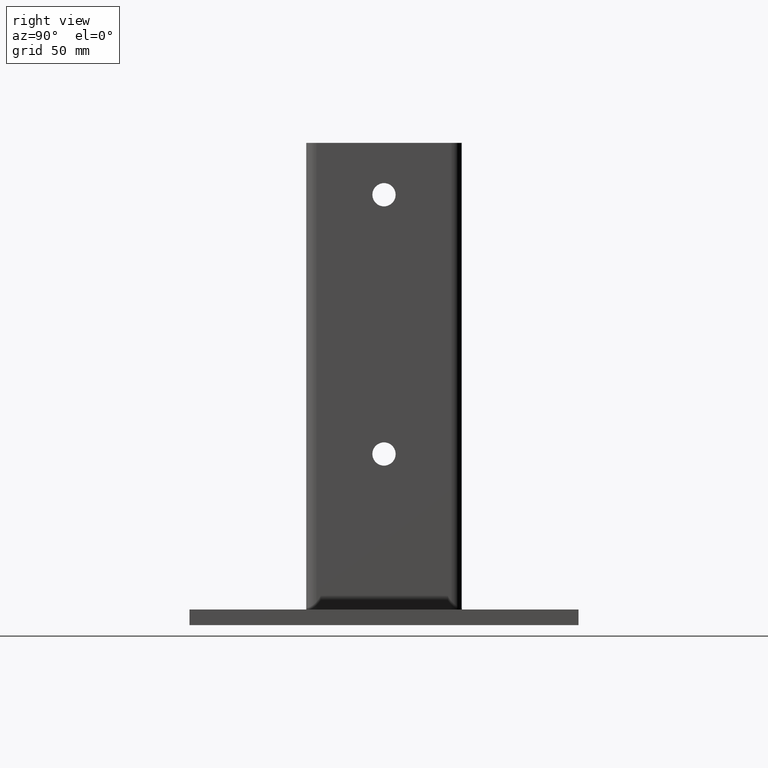
[diagram: clean part render]
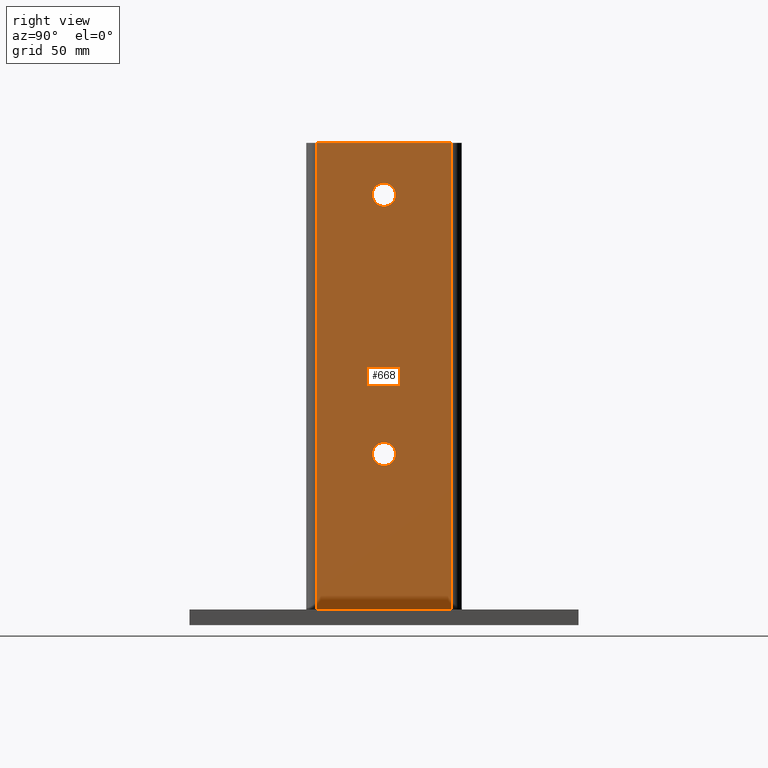
[diagram: same view with one face highlighted and labeled with its STEP entity id]
A machine part, right view. The second image highlights one B-rep face of the part: STEP entity #668.
In plain terms, the highlighted planar face has unit normal (1, -0, 0).
Its self-contained STEP definition (entity closure, byte-faithful):
#5 = AXIS2_PLACEMENT_3D ( 'NONE', #543, #544, #545 ) ;
#72 = CARTESIAN_POINT ( 'NONE',  ( 30.00000000000000000, 6.687256751344562700E-031, 160.0000000000000000 ) ) ;
#73 = DIRECTION ( 'NONE',  ( -1.000000000000000000, -3.854941057726234600E-016, -0.0000000000000000000 ) ) ;
#74 = DIRECTION ( 'NONE',  ( 0.0000000000000000000, -1.000000000000000000, 0.0000000000000000000 ) ) ;
#85 = VERTEX_POINT ( 'NONE', #1412 ) ;
#88 = VERTEX_POINT ( 'NONE', #1415 ) ;
#89 = VERTEX_POINT ( 'NONE', #1416 ) ;
#104 = CARTESIAN_POINT ( 'NONE',  ( 30.00000000000000700, -26.00000000000000400, 0.0000000000000000000 ) ) ;
#154 = CARTESIAN_POINT ( 'NONE',  ( 30.00000000000000000, 6.687256751344562700E-031, 160.0000000000000000 ) ) ;
#155 = DIRECTION ( 'NONE',  ( -1.000000000000000000, -3.854941057726234600E-016, -0.0000000000000000000 ) ) ;
#156 = DIRECTION ( 'NONE',  ( 0.0000000000000000000, -1.000000000000000000, 0.0000000000000000000 ) ) ;
#168 = CARTESIAN_POINT ( 'NONE',  ( 30.00000000000000000, 0.0000000000000000000, 180.0000000000000000 ) ) ;
#169 = DIRECTION ( 'NONE',  ( 0.0000000000000000000, 1.000000000000000000, 0.0000000000000000000 ) ) ;
#241 = CARTESIAN_POINT ( 'NONE',  ( 30.00000000000000400, 6.687256751344565300E-031, 60.00000000000000000 ) ) ;
#242 = DIRECTION ( 'NONE',  ( -1.000000000000000000, -3.854941057726235100E-016, -0.0000000000000000000 ) ) ;
#244 = DIRECTION ( 'NONE',  ( 7.709882115452470300E-016, -1.000000000000000000, 0.0000000000000000000 ) ) ;
#274 = AXIS2_PLACEMENT_3D ( 'NONE', #1417, #1418, #1419 ) ;
#275 = EDGE_CURVE ( 'NONE', #1169, #1172, #932, .T. ) ;
#293 = AXIS2_PLACEMENT_3D ( 'NONE', #154, #155, #156 ) ;
#294 = EDGE_CURVE ( 'NONE', #85, #559, #939, .T. ) ;
#330 = EDGE_CURVE ( 'NONE', #1172, #1169, #1105, .T. ) ;
#343 = EDGE_CURVE ( 'NONE', #1164, #1181, #856, .T. ) ;
#348 = EDGE_CURVE ( 'NONE', #88, #89, #1001, .T. ) ;
#373 = EDGE_CURVE ( 'NONE', #88, #559, #1088, .T. ) ;
#381 = EDGE_CURVE ( 'NONE', #85, #89, #1076, .T. ) ;
#405 = EDGE_CURVE ( 'NONE', #1181, #1164, #1043, .T. ) ;
#416 = AXIS2_PLACEMENT_3D ( 'NONE', #241, #242, #244 ) ;
#453 = CARTESIAN_POINT ( 'NONE',  ( 30.00000000000000000, -4.500000000000003600, 160.0000000000000000 ) ) ;
#458 = CARTESIAN_POINT ( 'NONE',  ( 30.00000000000000000, 4.500000000000003600, 60.00000000000000000 ) ) ;
#461 = CARTESIAN_POINT ( 'NONE',  ( 30.00000000000000700, -4.500000000000003600, 60.00000000000000000 ) ) ;
#470 = CARTESIAN_POINT ( 'NONE',  ( 30.00000000000000000, 4.500000000000003600, 160.0000000000000000 ) ) ;
#542 = PLANE ( 'NONE',  #5 ) ;
#543 = CARTESIAN_POINT ( 'NONE',  ( 30.00000000000000000, -26.00000000000000400, 180.0000000000000000 ) ) ;
#544 = DIRECTION ( 'NONE',  ( 1.000000000000000000, -0.0000000000000000000, 0.0000000000000000000 ) ) ;
#545 = DIRECTION ( 'NONE',  ( 0.0000000000000000000, 0.0000000000000000000, -1.000000000000000000 ) ) ;
#559 = VERTEX_POINT ( 'NONE', #104 ) ;
#588 = CARTESIAN_POINT ( 'NONE',  ( 30.00000000000000000, -26.00000000000000400, 90.00000000000000000 ) ) ;
#589 = DIRECTION ( 'NONE',  ( 0.0000000000000000000, 0.0000000000000000000, -1.000000000000000000 ) ) ;
#668 = ADVANCED_FACE ( 'NONE', ( #1269, #1271, #1272 ), #542, .T. ) ;
#718 = ORIENTED_EDGE ( 'NONE', *, *, #330, .T. ) ;
#719 = ORIENTED_EDGE ( 'NONE', *, *, #275, .T. ) ;
#720 = ORIENTED_EDGE ( 'NONE', *, *, #343, .T. ) ;
#721 = ORIENTED_EDGE ( 'NONE', *, *, #405, .T. ) ;
#722 = ORIENTED_EDGE ( 'NONE', *, *, #381, .T. ) ;
#723 = ORIENTED_EDGE ( 'NONE', *, *, #348, .F. ) ;
#724 = ORIENTED_EDGE ( 'NONE', *, *, #373, .T. ) ;
#725 = ORIENTED_EDGE ( 'NONE', *, *, #294, .F. ) ;
#802 = EDGE_LOOP ( 'NONE', ( #718, #719 ) ) ;
#803 = EDGE_LOOP ( 'NONE', ( #720, #721 ) ) ;
#804 = EDGE_LOOP ( 'NONE', ( #722, #723, #724, #725 ) ) ;
#856 = CIRCLE ( 'NONE', #293, 4.500000000000003600 ) ;
#892 = VECTOR ( 'NONE', #169, 1000.000000000000000 ) ;
#932 = CIRCLE ( 'NONE', #274, 4.500000000000003600 ) ;
#939 = LINE ( 'NONE', #1477, #941 ) ;
#941 = VECTOR ( 'NONE', #1478, 1000.000000000000000 ) ;
#1001 = LINE ( 'NONE', #168, #892 ) ;
#1043 = CIRCLE ( 'NONE', #1128, 4.500000000000003600 ) ;
#1075 = VECTOR ( 'NONE', #1307, 1000.000000000000000 ) ;
#1076 = LINE ( 'NONE', #1306, #1075 ) ;
#1086 = VECTOR ( 'NONE', #589, 1000.000000000000000 ) ;
#1088 = LINE ( 'NONE', #588, #1086 ) ;
#1105 = CIRCLE ( 'NONE', #416, 4.500000000000003600 ) ;
#1128 = AXIS2_PLACEMENT_3D ( 'NONE', #72, #73, #74 ) ;
#1164 = VERTEX_POINT ( 'NONE', #453 ) ;
#1169 = VERTEX_POINT ( 'NONE', #458 ) ;
#1172 = VERTEX_POINT ( 'NONE', #461 ) ;
#1181 = VERTEX_POINT ( 'NONE', #470 ) ;
#1269 = FACE_BOUND ( 'NONE', #802, .T. ) ;
#1271 = FACE_BOUND ( 'NONE', #803, .T. ) ;
#1272 = FACE_OUTER_BOUND ( 'NONE', #804, .T. ) ;
#1306 = CARTESIAN_POINT ( 'NONE',  ( 30.00000000000000000, 26.00000000000000400, 90.00000000000000000 ) ) ;
#1307 = DIRECTION ( 'NONE',  ( 0.0000000000000000000, 0.0000000000000000000, 1.000000000000000000 ) ) ;
#1412 = CARTESIAN_POINT ( 'NONE',  ( 30.00000000000000700, 26.00000000000000400, 0.0000000000000000000 ) ) ;
#1415 = CARTESIAN_POINT ( 'NONE',  ( 30.00000000000000000, -26.00000000000000400, 180.0000000000000000 ) ) ;
#1416 = CARTESIAN_POINT ( 'NONE',  ( 30.00000000000000000, 26.00000000000000400, 180.0000000000000000 ) ) ;
#1417 = CARTESIAN_POINT ( 'NONE',  ( 30.00000000000000400, 6.687256751344565300E-031, 60.00000000000000000 ) ) ;
#1418 = DIRECTION ( 'NONE',  ( -1.000000000000000000, -3.854941057726235100E-016, -0.0000000000000000000 ) ) ;
#1419 = DIRECTION ( 'NONE',  ( 7.709882115452470300E-016, -1.000000000000000000, 0.0000000000000000000 ) ) ;
#1477 = CARTESIAN_POINT ( 'NONE',  ( 30.00000000000001100, 0.0000000000000000000, 0.0000000000000000000 ) ) ;
#1478 = DIRECTION ( 'NONE',  ( -0.0000000000000000000, -1.000000000000000000, -0.0000000000000000000 ) ) ;